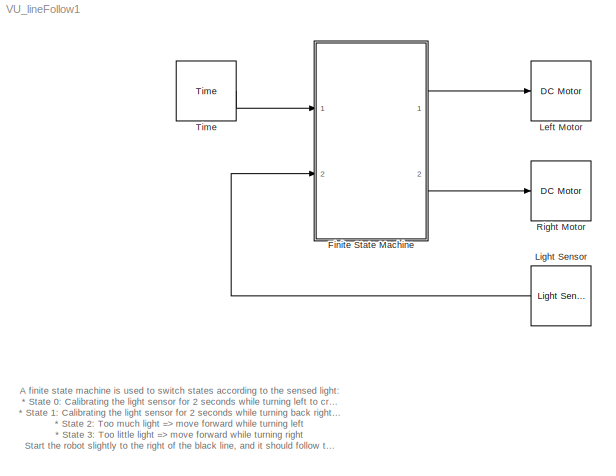
MODEL VU_lineFollow1
KIND model
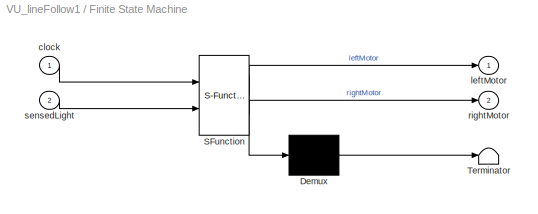
BLOCK [SubSystem] Finite State Machine
  FunctionWithSeparateData = off
  MaskDescription = Embedded MATLAB block
  MaskDisplay = disp('fsm');
  MaskHideContents = off
  MaskIconFrame = on
  MaskIconOpaque = off
  MaskIconRotate = none
  MaskIconUnits = autoscale
  MaskPortRotate = default
  MaskSelfModifiable = on
  MaskType = Stateflow
  MinAlgLoopOccurrences = off
  Opaque = off
  PermitHierarchicalResolution = ExplicitOnly
  Ports = [2, 2]
  PropExecContextOutsideSubsystem = off
  RTWSystemCode = Auto
  RequestExecContextInheritance = off
  SID = 35
  TreatAsAtomicUnit = on
BLOCK [Demux] Finite State Machine/ Demux 
  Outputs = 1
  Ports = [1, 1]
  SID = 15
BLOCK [S-Function] Finite State Machine/ SFunction 
  EnableBusSupport = on
  FunctionName = sf_sfun
  PortCounts = [2 3]
  Ports = [2, 3]
  SID = 14
  Tag = Stateflow S-Function VU_lineFollow1 2
BLOCK [Terminator] Finite State Machine/ Terminator 
  SID = 17
BLOCK [Inport] Finite State Machine/clock
  IconDisplay = Port number
  SID = 18
BLOCK [Outport] Finite State Machine/leftMotor
  IconDisplay = Port number
  OutDataType = sfix(16)
  OutScaling = 2^0
  SID = 5
BLOCK [Outport] Finite State Machine/rightMotor
  IconDisplay = Port number
  Port = 2
  SID = 19
BLOCK [Inport] Finite State Machine/sensedLight
  IconDisplay = Port number
  OutDataType = sfix(16)
  OutScaling = 2^0
  Port = 2
  SID = 1
BLOCK [Reference] Left Motor  REF=lego_nxt_lib/DC Motor  (lib defined in mdl_3d9a4c0387f8)
  Ports = [1]
  SID = 25
  SourceBlock = lego_nxt_lib/DC Motor
  SourceType = Servo Motor (Simple)
  brake = Coast
  port = Port C
BLOCK [Reference] Light Sensor  REF=lego_nxt_lib/Light Sensor  (lib defined in mdl_3d9a4c0387f8)
  Ports = [0, 1]
  SID = 26
  SourceBlock = lego_nxt_lib/Light Sensor
  SourceType = Light Sensor
  port = Port 3
  st = 0.1
BLOCK [Reference] Right Motor  REF=lego_nxt_lib/DC Motor  (lib defined in mdl_3d9a4c0387f8)
  Ports = [1]
  SID = 30
  SourceBlock = lego_nxt_lib/DC Motor
  SourceType = Servo Motor (Simple)
  brake = Coast
  port = Port B
BLOCK [Reference] Time  REF=lego_nxt_lib/Time  (lib defined in mdl_3d9a4c0387f8)
  Ports = [0, 1]
  SID = 36
  SourceBlock = lego_nxt_lib/Time
  SourceType = System Clock
  st = 0.1
ANNOTATION (root): A finite state machine is used to switch states according to the sensed light:\n* State 0: Calibrating the light sensor for 2 seconds while turning left to cross the black line\n* State 1: Calibrating the light sensor for 2 seconds while turning back right to the original position\n* State 2: Too much light => move forward while turning left\n* State 3: Too little light => move forward while turni...<+113ch>
LINE Finite State Machine/ Demux :1 -> Finite State Machine/ Terminator :1
LINE Finite State Machine/ SFunction :1 -> Finite State Machine/ Demux :1
LINE Finite State Machine/ SFunction :2 -> Finite State Machine/leftMotor:1
LINE Finite State Machine/ SFunction :3 -> Finite State Machine/rightMotor:1
LINE Finite State Machine/clock:1 -> Finite State Machine/ SFunction :1
LINE Finite State Machine/sensedLight:1 -> Finite State Machine/ SFunction :2
LINE Finite State Machine:1 -> Left Motor:1
LINE Finite State Machine:2 -> Right Motor:1
LINE Light Sensor:1 -> Finite State Machine:2
LINE Time:1 -> Finite State Machine:1
CHART Finite State Machine states=1 transitions=1
  STATE_LABEL 'eML_blk_kernel()'
